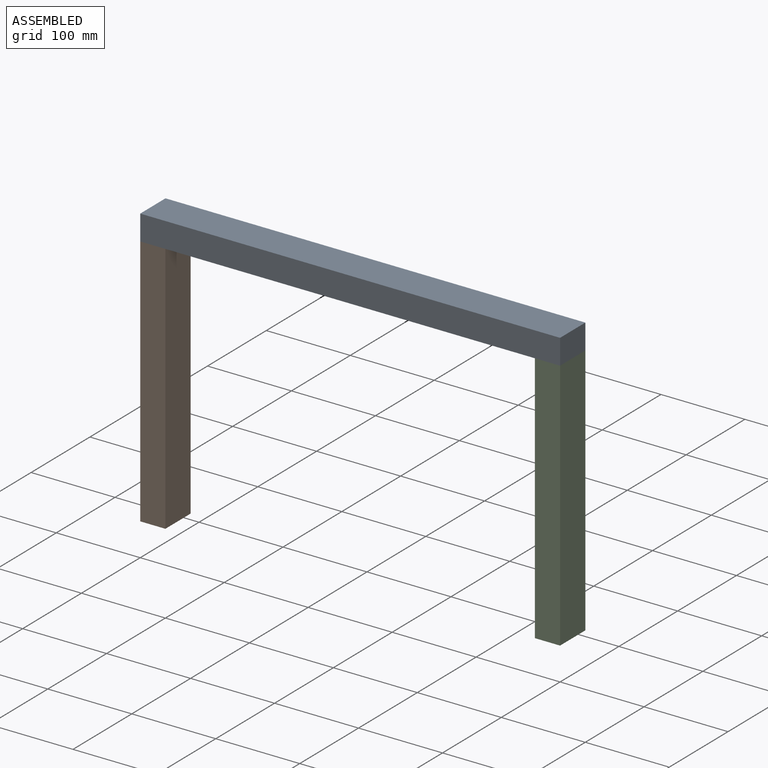
[diagram: assembled view]
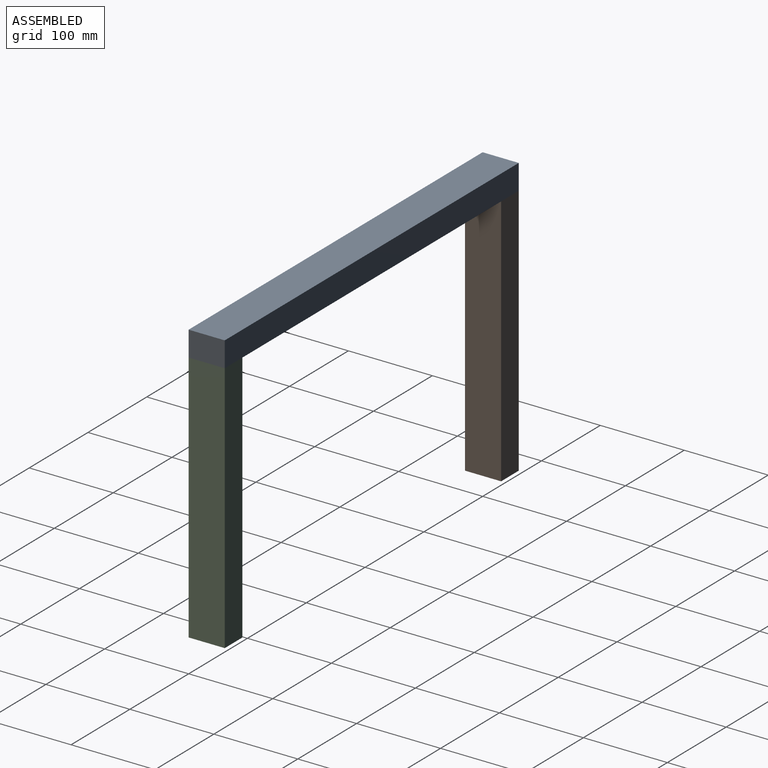
[diagram: assembled view, second angle]
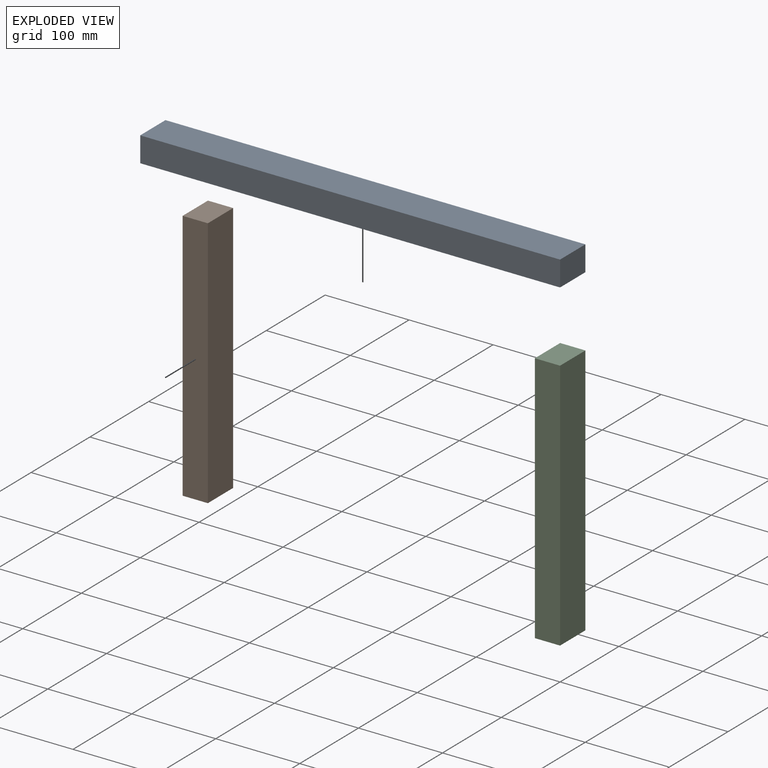
[diagram: exploded view]
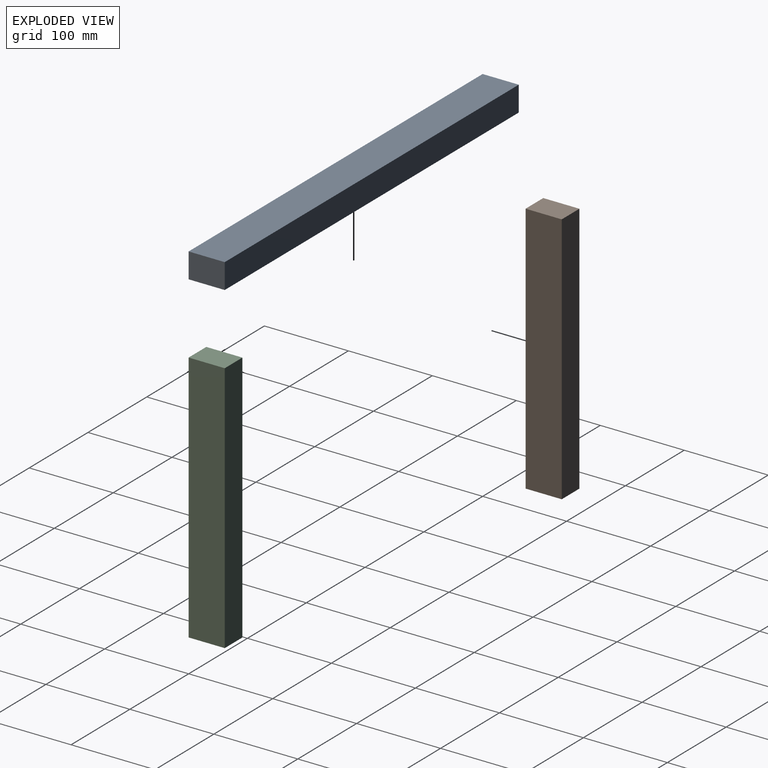
[diagram: exploded view, second angle]
ASSEMBLY  parts=3 mates=2
PART A: 6 faces, bbox 500x30x43 mm
  f0: plane 500x43mm, normal (0,-1,0), area 21500mm2, adj f1,f3,f4,f5
  f1: plane 43x30mm, normal (1,0,0), area 1290mm2, adj f0,f2,f4,f5
  f2: plane 500x43mm, normal (0,1,0), area 21500mm2, adj f1,f3,f4,f5
  f3: plane 43x30mm, normal (-1,0,0), area 1290mm2, adj f0,f2,f4,f5
  f4: plane 500x30mm, normal (0,0,1), area 15000mm2, adj f0,f1,f2,f3
  f5: plane 500x30mm, normal (0,0,-1), area 15000mm2, adj f0,f1,f2,f3
PART B: 6 faces, bbox 30x301.3x43 mm
  f0: plane 43x30mm, normal (0,-1,0), area 1290mm2, adj f1,f3,f4,f5
  f1: plane 301.25x43mm, normal (1,0,0), area 12953.8mm2, adj f0,f2,f4,f5
  f2: plane 43x30mm, normal (0,1,0), area 1290mm2, adj f1,f3,f4,f5
  f3: plane 301.25x43mm, normal (-1,0,0), area 12953.8mm2, adj f0,f2,f4,f5
  f4: plane 301.25x30mm, normal (0,0,1), area 9037.5mm2, adj f0,f1,f2,f3
  f5: plane 301.25x30mm, normal (0,0,-1), area 9037.5mm2, adj f0,f1,f2,f3
PART C: same geometry as B
PLACE A rot(axis=(-1,0,0),90deg) t=(-30,0,632.5)mm
PLACE B rot(axis=(0,0.71,0.71),180deg) t=(530,0,0)mm
PLACE C rot(axis=(1,0,0),90deg) t=(-30,43,0)mm
MATE fastened A.f5 <-> B.f5  axis (0,1,0) through (0,0,301.25)mm
MATE fastened C.f2 <-> A.f2  axis (0,0,1) through (500,0,301.25)mm
